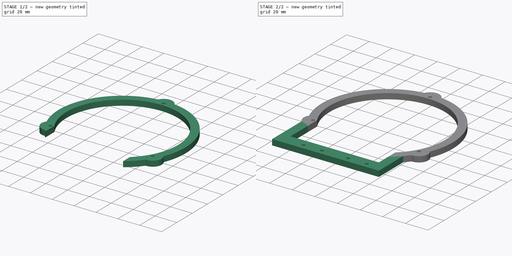
[diagram: build sequence overview — one tinted view per stage of 2, left to right]
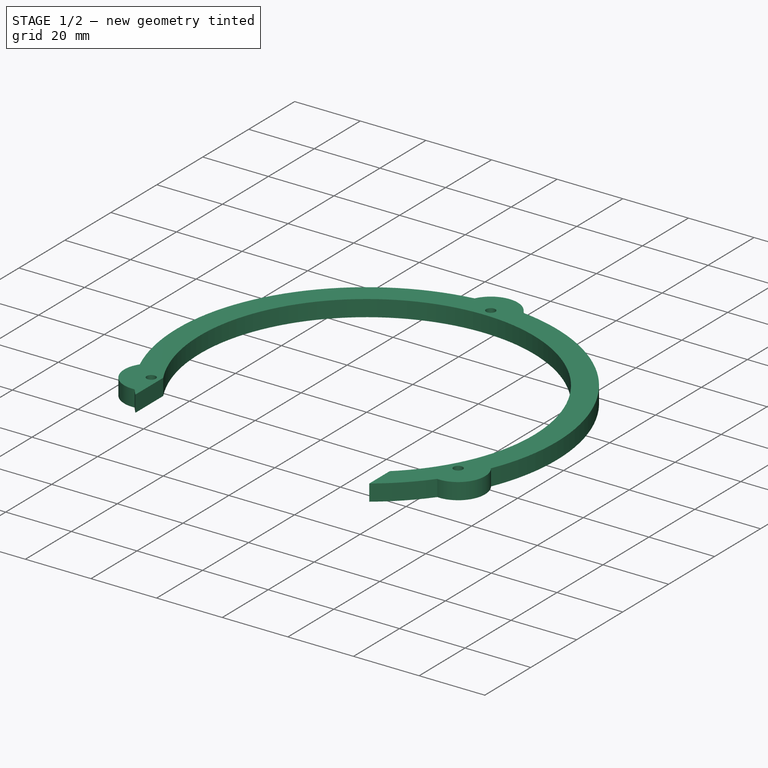
[diagram: stage 1 of 2 — iso view after this stage's code; geometry added in this stage tinted green]
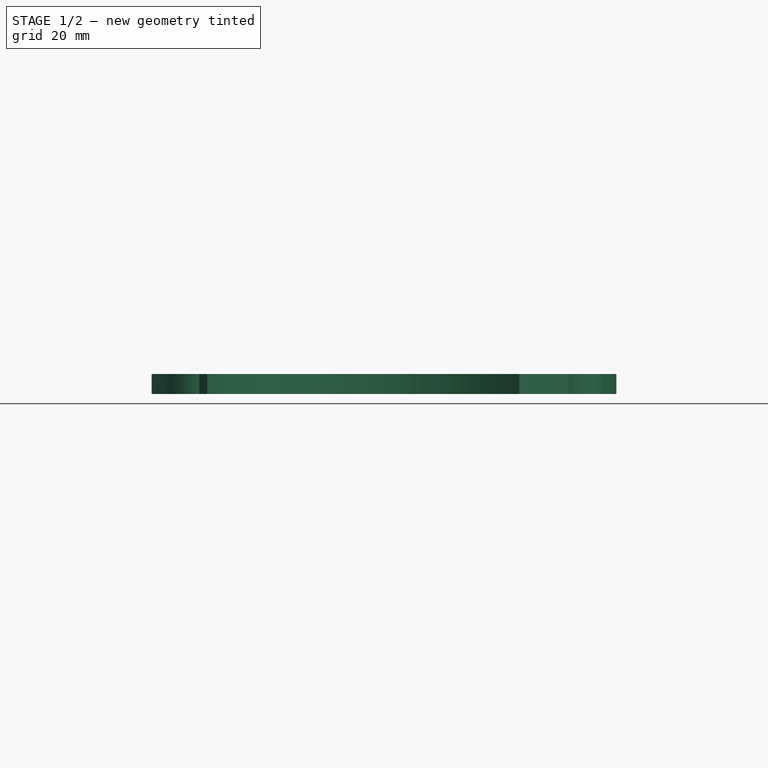
[diagram: stage 1 of 2 — front view after this stage's code; geometry added in this stage tinted green]
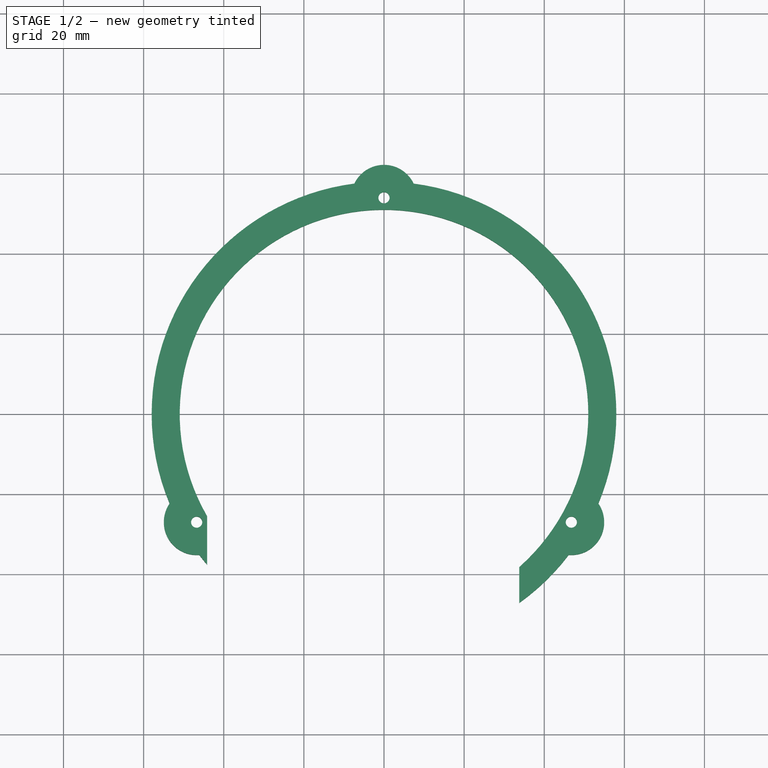
[diagram: stage 1 of 2 — top view after this stage's code; geometry added in this stage tinted green]
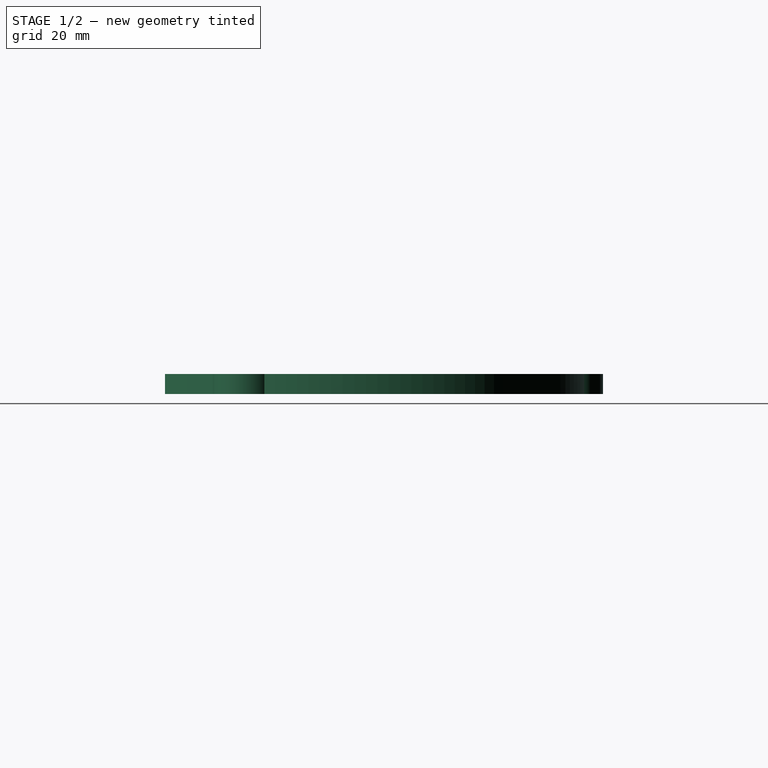
[diagram: stage 1 of 2 — right view after this stage's code; geometry added in this stage tinted green]
FCSTD DOCUMENT  (FreeCAD 0.20R29177 (Git))
Label: motorHolder
License: All rights reserved
LicenseURL: http://en.wikipedia.org/wiki/All_rights_reserved
objects: Sketcher::SketchObject×3, PartDesign::Pad×2, Spreadsheet::Sheet×1, PartDesign::Pocket×1, PartDesign::Body×1
note: 10 computed .brp shape members not serialized (recipe doc carries the construction recipe); baked Part::Feature solids carry a one-line shape summary decoded from their .brp

FEATURE [Sketcher::SketchObject] Sketch
  FullyConstrained = true
  MapMode = 5
  Support = -> [XY_Plane]
  expr: Constraints[13] = Spreadsheet.r
  expr: Constraints[17] = Spreadsheet.screwR
  expr: Constraints[1] = Spreadsheet.innerR
  expr: Constraints[2] = Spreadsheet.outerR
  sketch-geometry (13):
    g0: ArcOfCircle CenterX=0 CenterY=0 CenterZ=0 NormalX=0 NormalY=0 NormalZ=1 AngleXU=0 Radius=58 StartAngle=1.69879 EndAngle=3.5372
    g1: Circle CenterX=0 CenterY=0 CenterZ=0 NormalX=0 NormalY=0 NormalZ=1 AngleXU=0 Radius=51
    g2: Circle CenterX=-1.58e-14 CenterY=54 CenterZ=0 NormalX=0 NormalY=0 NormalZ=1 AngleXU=0 Radius=1.4
    g3: Circle CenterX=46.7654 CenterY=-27 CenterZ=0 NormalX=0 NormalY=0 NormalZ=1 AngleXU=0 Radius=1.4
    g4: LineSegment StartX=-1.58e-14 StartY=54 StartZ=0 EndX=0 EndY=0 EndZ=0
    g5: LineSegment StartX=0 StartY=0 StartZ=0 EndX=46.7654 EndY=-27 EndZ=0
    g6: LineSegment StartX=0 StartY=0 StartZ=0 EndX=-46.7654 EndY=-27 EndZ=0
    g7: Circle CenterX=-46.7654 CenterY=-27 CenterZ=0 NormalX=0 NormalY=0 NormalZ=1 AngleXU=0 Radius=1.4
    g8: ArcOfCircle CenterX=-1.58e-14 CenterY=54 CenterZ=0 NormalX=0 NormalY=0 NormalZ=1 AngleXU=0 Radius=8.2 StartAngle=0.444433 EndAngle=2.69716
    g9: ArcOfCircle CenterX=-46.7654 CenterY=-27 CenterZ=0 NormalX=0 NormalY=0 NormalZ=1 AngleXU=0 Radius=8.2 StartAngle=2.53883 EndAngle=4.79156
    g10: ArcOfCircle CenterX=46.7654 CenterY=-27 CenterZ=0 NormalX=0 NormalY=0 NormalZ=1 AngleXU=0 Radius=8.2 StartAngle=4.63322 EndAngle=6.88595
    g11: ArcOfCircle CenterX=0 CenterY=0 CenterZ=0 NormalX=0 NormalY=0 NormalZ=1 AngleXU=0 Radius=58 StartAngle=3.79319 EndAngle=5.63159
    g12: ArcOfCircle CenterX=0 CenterY=0 CenterZ=0 NormalX=0 NormalY=0 NormalZ=1 AngleXU=0 Radius=58 StartAngle=5.88758 EndAngle=7.72599
  constraints (35):
    c: Coincident(g1,g0)
    c: Radius(g1) = 51
    c: Radius(g0) = 58
    c: Coincident(g4,g2)
    c: Coincident(g4,g0)
    c: Coincident(g5,g0)
    c: Coincident(g5,g3)
    c: Coincident(g6,g0)
    c: Equal(g4,g5)
    c: Equal(g6,g5)
    c: Angle(g4,g-2) = 0
    c: Angle(g5,g4) = 2.0944
    c: Angle(g4,g6) = 2.0944
    c: Distance(g4) = 54
    c: Coincident(g7,g6)
    c: Equal(g3,g7)
    c: Equal(g3,g2)
    c: Radius(g3) = 1.4
    c: Coincident(g8,g0)
    c: Coincident(g8,g12)
    c: Radius(g8) = 8.2
    c: Coincident(g9,g7)
    c: Coincident(g10,g3)
    c: Equal(g8,g9)
    c: Equal(g8,g10)
    c: Equal(g0,g11)
    c: Coincident(g0,g9)
    c: Coincident(g11,g9)
    c: Coincident(g0,g11)
    c: Equal(g11,g12)
    c: Coincident(g11,g10)
    c: Coincident(g12,g10)
    c: Coincident(g11,g12)
    c: Coincident(g0,g-1)
    c: Coincident(g8,g2)
FEATURE [PartDesign::Pad] Pad
  Direction = (0,0,1)
  Length = 5
  Length2 = 10
  Profile = -> Sketch
  ReferenceAxis = -> Sketch [N_Axis]
  Type = 0
  expr: Length = Spreadsheet.thickness
FEATURE [Spreadsheet::Sheet] Spreadsheet
  cells = A2=r; B2(r)=54; A3=screwR; B3(screwR)=1.4; A4=outerR; B4(outerR)==B2 + 4; A5=innerR; B5(innerR)==B2 - 3; A6=bottomScrewHoleToCenter; B6(bottomScrewHoleToCenter)=66; A7=thickness; B7(thickness)=5
FEATURE [Sketcher::SketchObject] Sketch001
  ExternalGeometry = -> [Pad]
  FullyConstrained = false
  MapMode = 5
  Support = -> [XY_Plane]
  sketch-geometry (5):
    g0: LineSegment StartX=-44.1673 StartY=-25.5 StartZ=0 EndX=-46.7654 EndY=-27 EndZ=0
    g1: LineSegment StartX=-44.1673 StartY=-25.5 StartZ=0 EndX=-44.1673 EndY=-59.3058 EndZ=0
    g2: LineSegment StartX=-44.1673 StartY=-59.3058 StartZ=0 EndX=33.7769 EndY=-59.3058 EndZ=0
    g3: LineSegment StartX=33.7769 StartY=-59.3058 StartZ=0 EndX=33.7769 EndY=-29.1876 EndZ=0
    g4: LineSegment StartX=33.7769 StartY=-29.1876 StartZ=0 EndX=-44.1673 EndY=-25.5 EndZ=0
  constraints (10):
    c: Angle(g-2,g0) = 2.0944
    c: PointOnObject(g0,g-3)
    c: Coincident(g1,g0)
    c: Vertical(g1)
    c: Coincident(g2,g1)
    c: Horizontal(g2)
    c: Coincident(g3,g2)
    c: Vertical(g3)
    c: Coincident(g4,g3)
    c: Coincident(g4,g1)
FEATURE [PartDesign::Pocket] Pocket
  BaseFeature = -> Pad
  Direction = (0,0,-1)
  Length = 5
  Length2 = 5
  Profile = -> Sketch001
  ReferenceAxis = -> Sketch001 [N_Axis]
  Reversed = true
  Type = 0
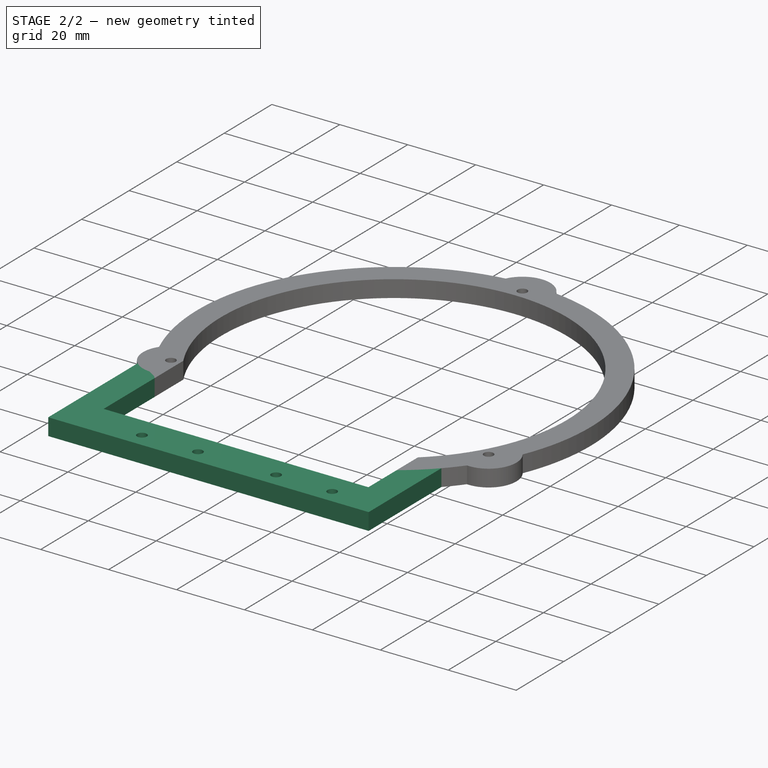
[diagram: stage 2 of 2 — iso view after this stage's code; geometry added in this stage tinted green]
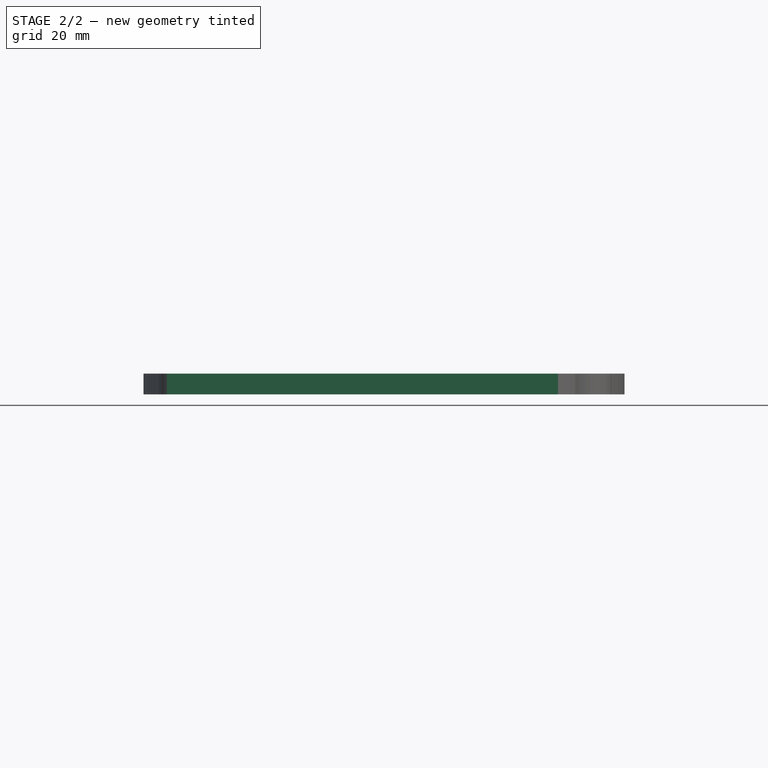
[diagram: stage 2 of 2 — front view after this stage's code; geometry added in this stage tinted green]
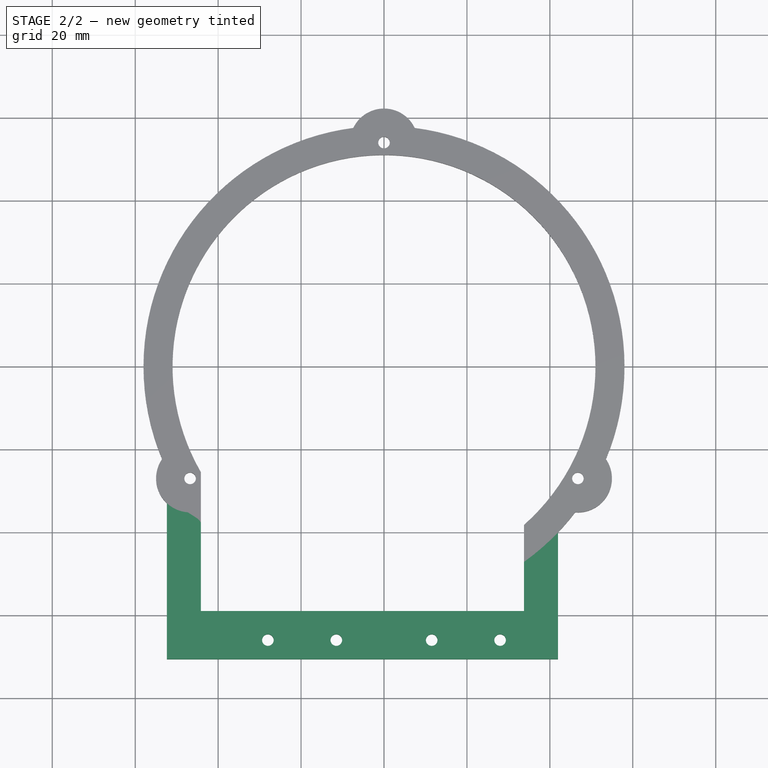
[diagram: stage 2 of 2 — top view after this stage's code; geometry added in this stage tinted green]
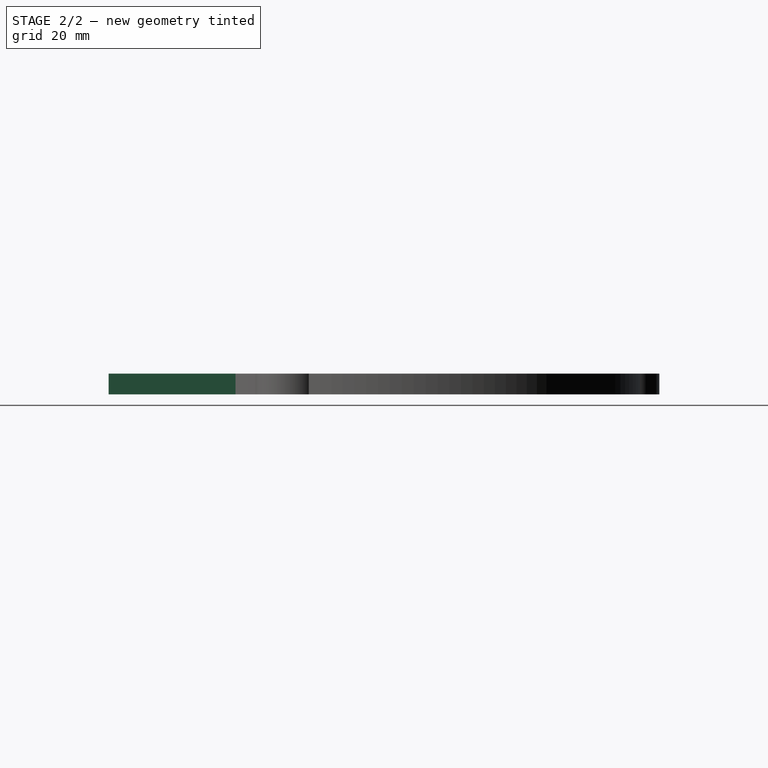
[diagram: stage 2 of 2 — right view after this stage's code; geometry added in this stage tinted green]
FEATURE [Sketcher::SketchObject] Sketch002
  ExternalGeometry = -> [Pocket]
  FullyConstrained = false
  MapMode = 5
  Support = -> [XY_Plane]
  expr: Constraints[27] = Spreadsheet.screwR
  expr: Constraints[2] = Spreadsheet.outerR
  expr: Constraints[32] = Spreadsheet.bottomScrewHoleToCenter
  expr: Constraints[33] = Spreadsheet.bottomScrewHoleToCenter
  expr: Constraints[34] = Spreadsheet.bottomScrewHoleToCenter
  expr: Constraints[35] = Spreadsheet.bottomScrewHoleToCenter
  sketch-geometry (16):
    g0: LineSegment StartX=0 StartY=0 StartZ=0 EndX=0 EndY=-58 EndZ=0
    g1: LineSegment StartX=0 StartY=-58 StartZ=0 EndX=0 EndY=-59 EndZ=0
    g2: LineSegment StartX=-44.1673 StartY=-59 StartZ=0 EndX=33.7769 EndY=-59 EndZ=0
    g3: LineSegment StartX=41.9769 StartY=-40.0243 StartZ=0 EndX=41.9769 EndY=-70.6 EndZ=0
    g4: LineSegment StartX=41.9769 StartY=-70.6 StartZ=0 EndX=-52.3673 EndY=-70.6 EndZ=0
    g5: LineSegment StartX=-52.3673 StartY=-70.6 StartZ=0 EndX=-52.3673 EndY=-32.9882 EndZ=0
    g6: LineSegment StartX=33.7769 StartY=-47.15 StartZ=0 EndX=33.7769 EndY=-59 EndZ=0
    g7: LineSegment StartX=-44.1673 StartY=-25.5 StartZ=0 EndX=-44.1673 EndY=-59 EndZ=0
    g8: Circle CenterX=11.5 CenterY=-66 CenterZ=0 NormalX=0 NormalY=0 NormalZ=1 AngleXU=0 Radius=1.4
    g9: Circle CenterX=28 CenterY=-66 CenterZ=0 NormalX=0 NormalY=0 NormalZ=1 AngleXU=0 Radius=1.4
    g10: Circle CenterX=-11.5 CenterY=-66 CenterZ=0 NormalX=0 NormalY=0 NormalZ=1 AngleXU=0 Radius=1.4
    g11: Circle CenterX=-28 CenterY=-66 CenterZ=0 NormalX=0 NormalY=0 NormalZ=1 AngleXU=0 Radius=1.4
    g12: LineSegment StartX=-44.1673 StartY=-25.5 StartZ=0 EndX=-44.1673 EndY=-32.7 EndZ=0
    g13: LineSegment StartX=-44.1673 StartY=-32.7 StartZ=0 EndX=-52.3673 EndY=-32.9882 EndZ=0
    g14: LineSegment StartX=33.7769 StartY=-47.15 StartZ=0 EndX=34.952 EndY=-41.7354 EndZ=0
    g15: LineSegment StartX=34.952 StartY=-41.7354 StartZ=0 EndX=41.9769 EndY=-40.0243 EndZ=0
  constraints (43):
    c: Coincident(g0,g-1)
    c: PointOnObject(g0,g-2)
    c: Distance(g0) = 58
    c: Coincident(g1,g0)
    c: PointOnObject(g1,g-2)
    c: DistanceY(g1,g1) = 1
    c: Coincident(g3,g4)
    c: Horizontal(g2)
    c: Horizontal(g4)
    c: Vertical(g3)
    c: PointOnObject(g5,g-5)
    c: Vertical(g5)
    c: Coincident(g6,g-6)
    c: Vertical(g6)
    c: Coincident(g7,g-3)
    c: Vertical(g7)
    c: Coincident(g2,g7)
    c: Coincident(g2,g6)
    c: PointOnObject(g1,g2)
    c: DistanceY(g3,g2) = 11.6
    c: PointOnObject(g3,g-6)
    c: DistanceX(g2,g3) = 8.2
    c: Coincident(g5,g4)
    c: DistanceX(g4,g2) = 8.2
    c: Equal(g11,g10)
    c: Equal(g11,g8)
    c: Equal(g11,g9)
    c: Radius(g11) = 1.4
    c: DistanceX(g0,g8) = 11.5
    c: DistanceX(g10,g0) = 11.5
    c: DistanceX(g0,g9) = 28
    c: DistanceX(g11,g0) = 28
    c: DistanceY(g8,g0) = 66
    c: DistanceY(g9,g0) = 66
    c: DistanceY(g10,g0) = 66
    c: DistanceY(g11,g0) = 66
    c: Coincident(g12,g7)
    c: PointOnObject(g12,g-3)
    c: Coincident(g13,g12)
    c: Coincident(g13,g5)
    c: Coincident(g14,g6)
    c: Coincident(g15,g14)
    c: Coincident(g15,g3)
FEATURE [PartDesign::Pad] Pad001
  BaseFeature = -> Pocket
  Direction = (0,0,1)
  Length = 5
  Length2 = 10
  Profile = -> Sketch002
  ReferenceAxis = -> Sketch002 [N_Axis]
  Type = 0
  expr: Length = Spreadsheet.thickness
FEATURE [PartDesign::Body] Body
  Group = -> [Sketch,Pad,Sketch001,Pocket,Sketch002,Pad001]
  Origin = -> Origin
  Tip = -> Pad001
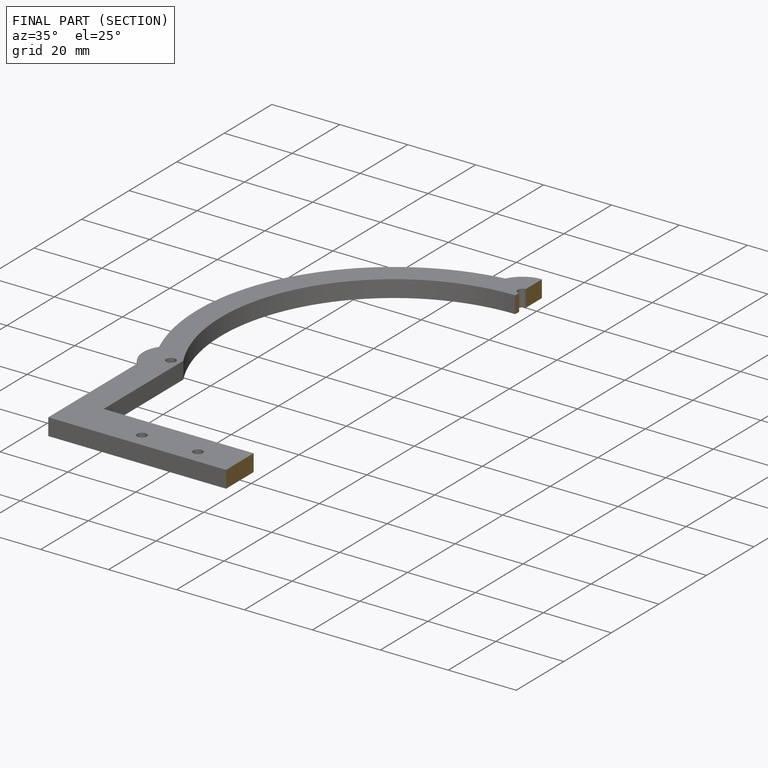
[diagram: finished part — half-section view (interior)]
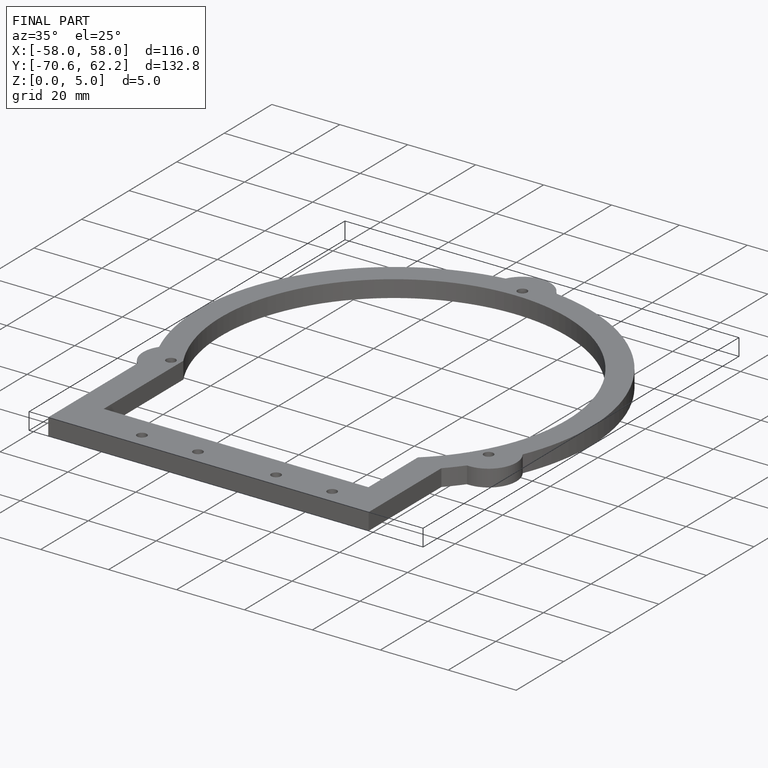
[diagram: finished part — iso view with bounding-box wireframe]
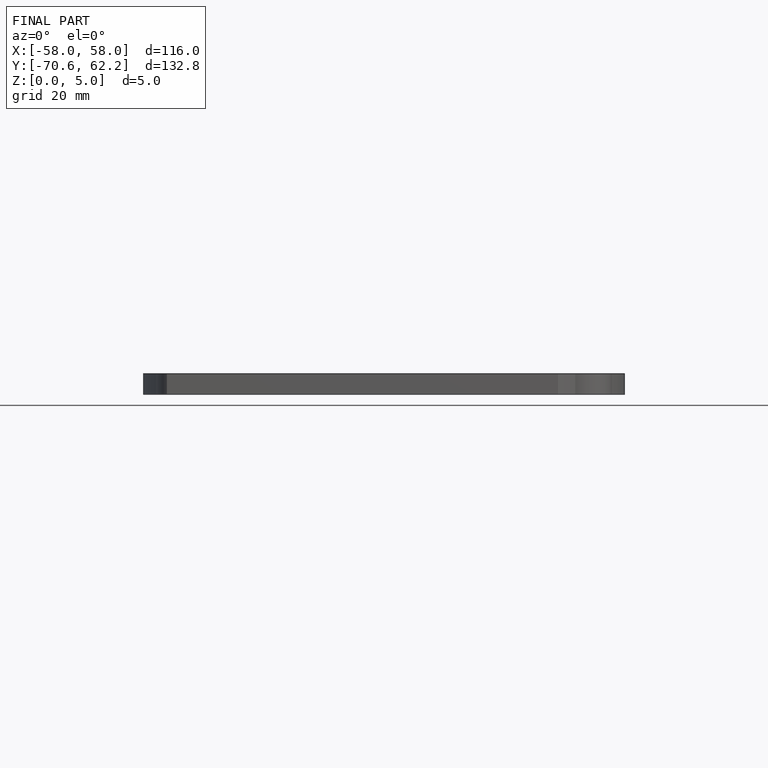
[diagram: finished part — front view with bounding-box wireframe]
